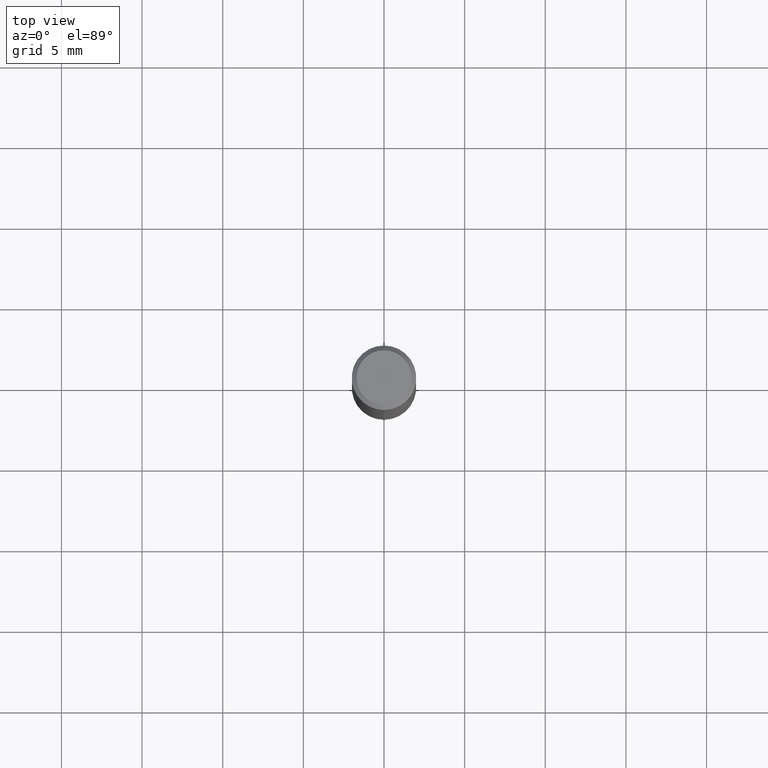
[diagram: clean part render]
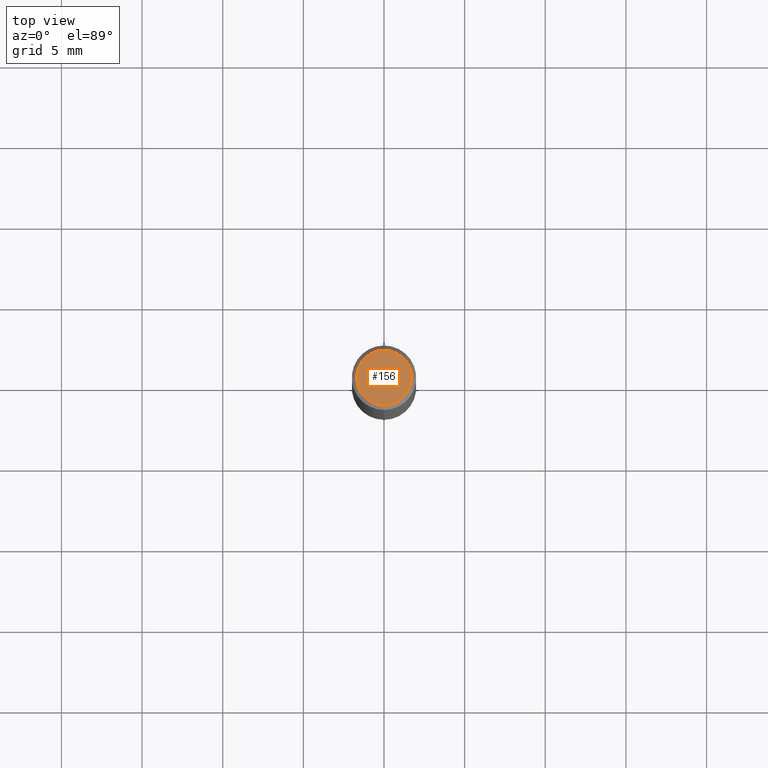
[diagram: same view with one face highlighted and labeled with its STEP entity id]
A machine part, top view. The second image highlights one B-rep face of the part: STEP entity #156.
In plain terms, the highlighted planar face has unit normal (-0, 0, 1).
Its self-contained STEP definition (entity closure, byte-faithful):
#140=VERTEX_POINT('',#283);
#142=EDGE_CURVE('',#140,#196,#285,.T.);
#150=EDGE_CURVE('',#196,#140,#294,.T.);
#156=ADVANCED_FACE('',(#300),#301,.T.);
#196=VERTEX_POINT('',#347);
#283=CARTESIAN_POINT('',(0.0,1.7,0.0));
#285=CIRCLE('',#444,1.7);
#294=CIRCLE('',#456,1.7);
#300=FACE_OUTER_BOUND('',#463,.T.);
#301=PLANE('',#464);
#347=CARTESIAN_POINT('',(2.08183080149804E-016,-1.7,0.0));
#444=AXIS2_PLACEMENT_3D('',#612,#613,#614);
#456=AXIS2_PLACEMENT_3D('',#624,#625,#626);
#463=EDGE_LOOP('',(#631,#632));
#464=AXIS2_PLACEMENT_3D('',#633,#634,#635);
#612=CARTESIAN_POINT('',(0.0,0.0,0.0));
#613=DIRECTION('',(0.0,0.0,-1.0));
#614=DIRECTION('',(0.0,1.0,0.0));
#624=CARTESIAN_POINT('',(0.0,0.0,0.0));
#625=DIRECTION('',(0.0,0.0,-1.0));
#626=DIRECTION('',(0.0,1.0,0.0));
#631=ORIENTED_EDGE('',*,*,#142,.F.);
#632=ORIENTED_EDGE('',*,*,#150,.F.);
#633=CARTESIAN_POINT('',(0.0,0.85,0.0));
#634=DIRECTION('',(-0.0,0.0,1.0));
#635=DIRECTION('',(0.0,-1.0,0.0));